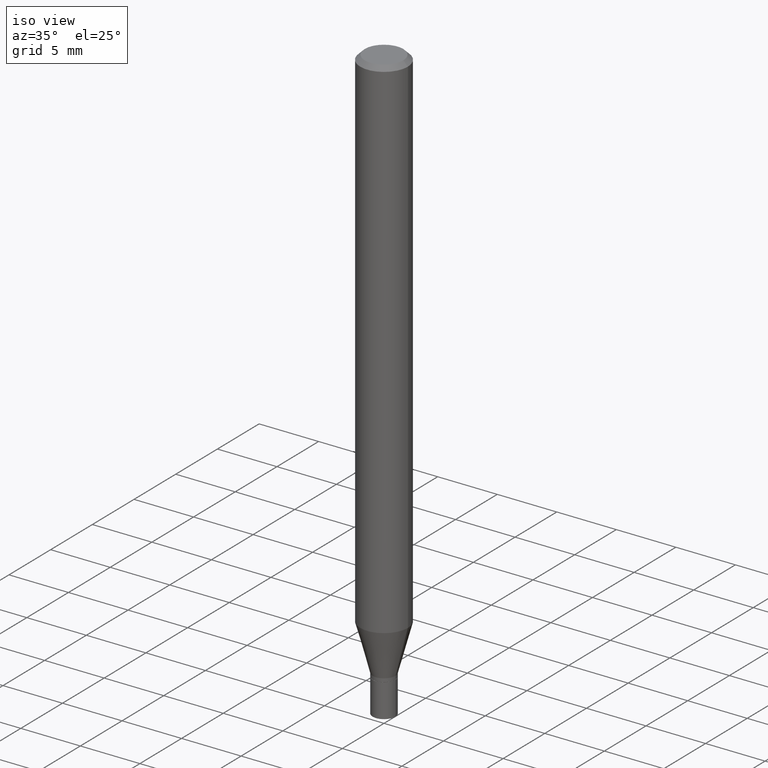
[diagram: clean part render]
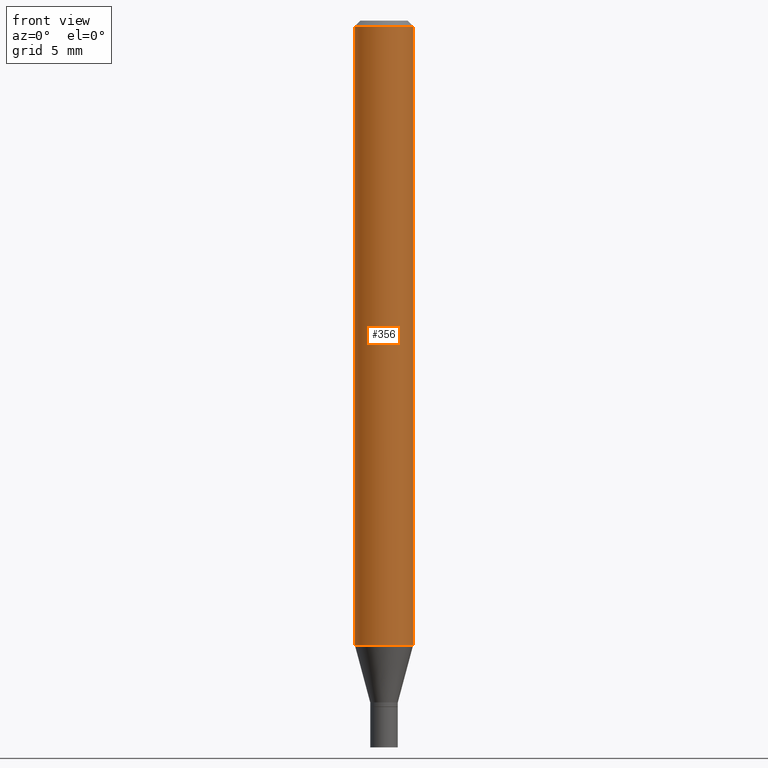
[diagram: tour spotlight — one face highlighted and labeled with its STEP entity id]
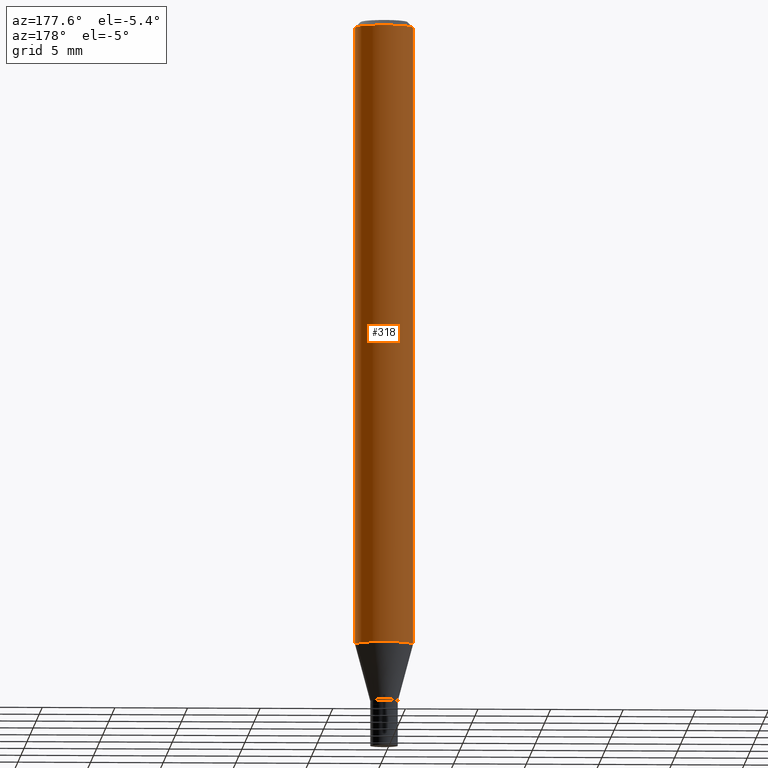
[diagram: tour spotlight — one face highlighted and labeled with its STEP entity id]
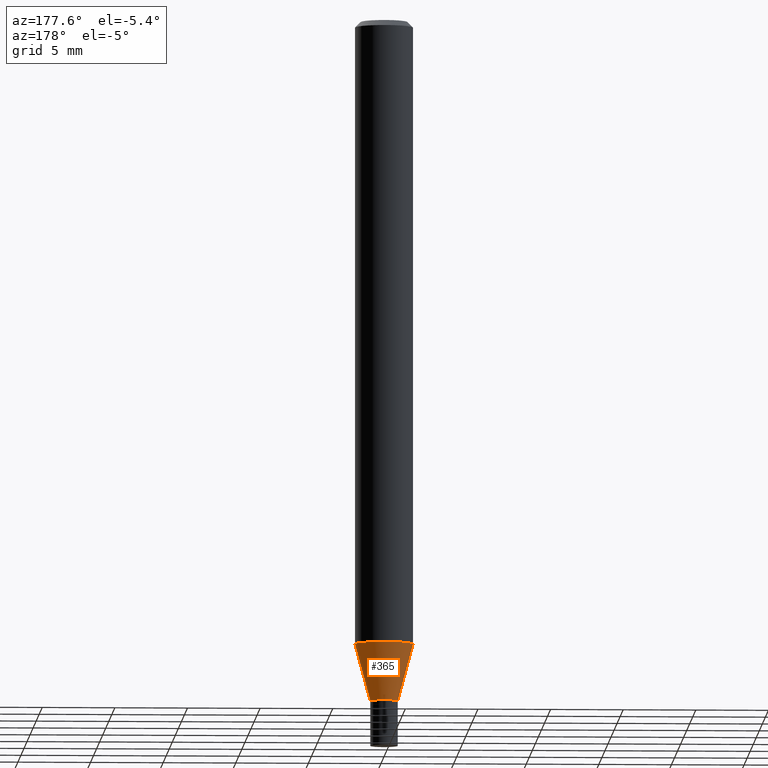
[diagram: tour spotlight — one face highlighted and labeled with its STEP entity id]
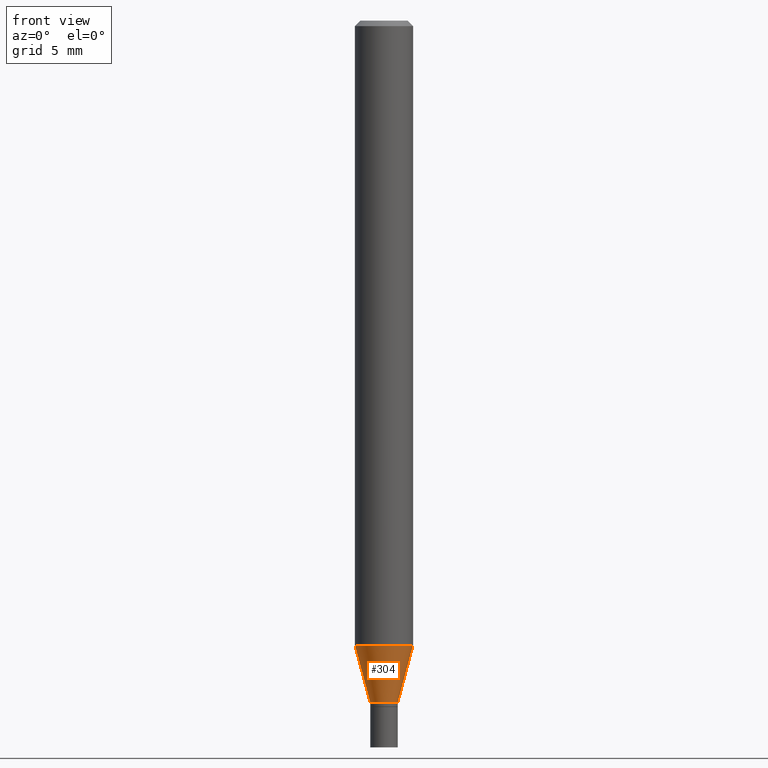
[diagram: tour spotlight — one face highlighted and labeled with its STEP entity id]
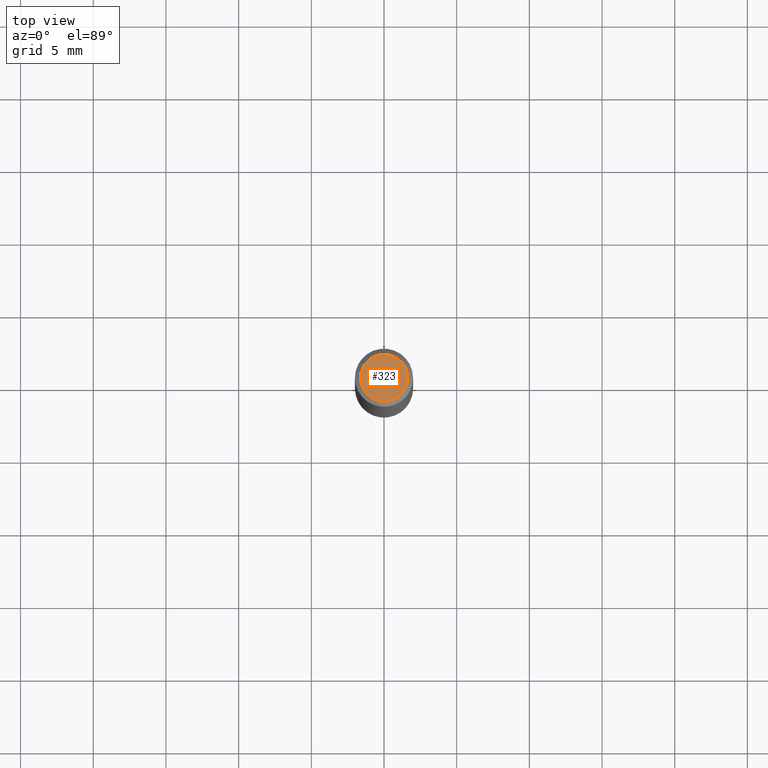
[diagram: tour spotlight — one face highlighted and labeled with its STEP entity id]
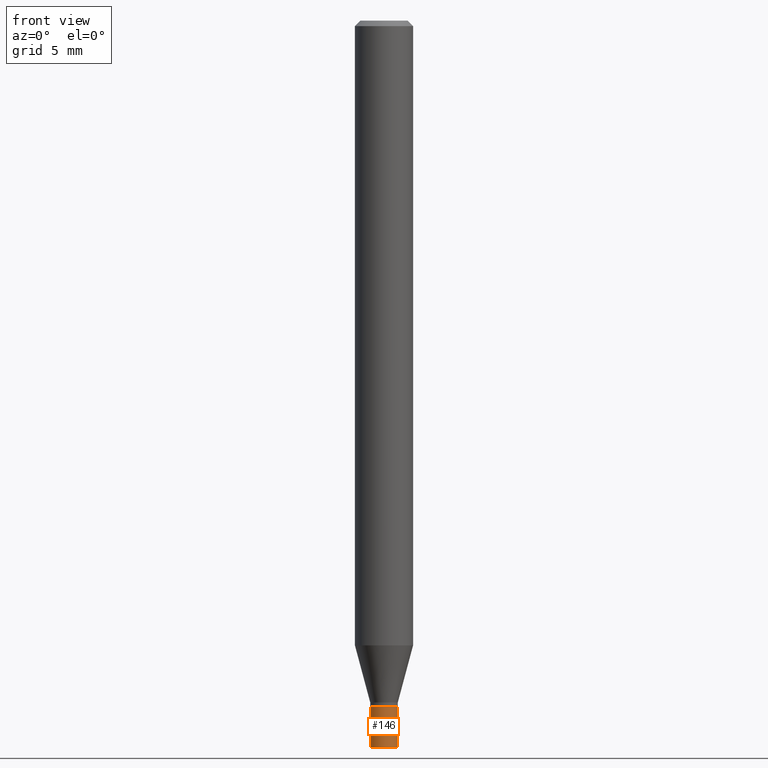
[diagram: tour spotlight — one face highlighted and labeled with its STEP entity id]
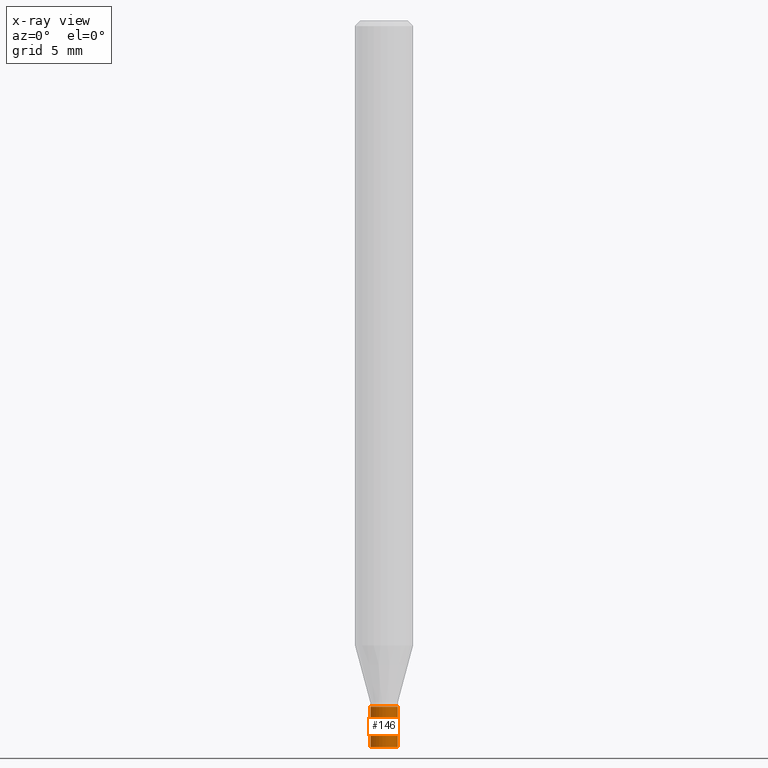
[diagram: x-ray of the same camera — body ghosted, this tour face saturated]
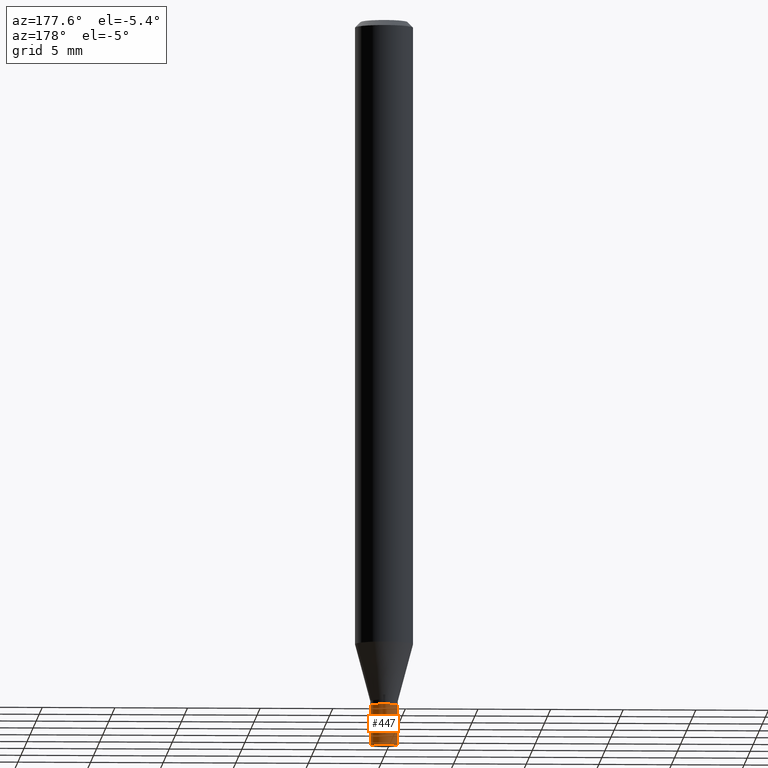
[diagram: tour spotlight — one face highlighted and labeled with its STEP entity id]
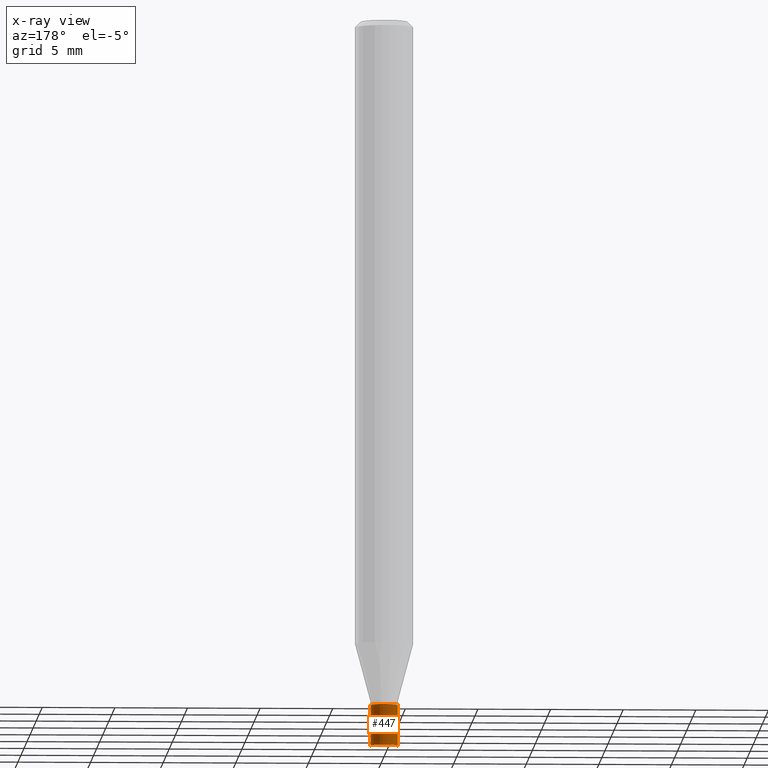
[diagram: x-ray of the same camera — body ghosted, this tour face saturated]
A machine part: a face-by-face anatomy tour. The part has 16 B-rep faces; the first image is the clean iso view, then the 7 largest visible faces are spotlighted one at a time (largest first), each with its STEP entity span.

Face 1 — front view, entity #356. In plain terms, the highlighted cylindrical surface (edge-blend (fillet) strip) has radius 2.0002 mm, axis along (-0, 0, 1).
Definition (entity closure, byte-faithful):
#1 = ORIENTED_EDGE ( 'NONE', *, *, #22, .F. ) ;
#19 = LINE ( 'NONE', #273, #438 ) ;
#22 = EDGE_CURVE ( 'NONE', #91, #448, #425, .T. ) ;
#23 = FACE_OUTER_BOUND ( 'NONE', #303, .T. ) ;
#35 = AXIS2_PLACEMENT_3D ( 'NONE', #161, #232, #387 ) ;
#46 = EDGE_CURVE ( 'NONE', #388, #448, #249, .T. ) ;
#58 = DIRECTION ( 'NONE',  ( -2.445468806185136597E-29, 3.491481338843145583E-15, 1.000000000000000000 ) ) ;
#76 = VERTEX_POINT ( 'NONE', #316 ) ;
#91 = VERTEX_POINT ( 'NONE', #460 ) ;
#98 = CARTESIAN_POINT ( 'NONE',  ( 0.07875000000000000056, -5.499083108677934443E-16, 3.839989210939299016E-30 ) ) ;
#101 = DIRECTION ( 'NONE',  ( 1.000000000000000000, -6.982962677686265922E-15, 0.000000000000000000 ) ) ;
#107 = EDGE_CURVE ( 'NONE', #76, #91, #19, .T. ) ;
#112 = EDGE_CURVE ( 'NONE', #76, #388, #117, .T. ) ;
#117 = CIRCLE ( 'NONE', #379, 0.07875000000000000056 ) ;
#135 = CARTESIAN_POINT ( 'NONE',  ( 3.668203209277705088E-31, -5.237222008264718399E-17, -0.01499999999999999944 ) ) ;
#139 = DIRECTION ( 'NONE',  ( -2.445468806185136597E-29, 3.491481338843145583E-15, 1.000000000000000000 ) ) ;
#161 = CARTESIAN_POINT ( 'NONE',  ( 0.000000000000000000, 0.000000000000000000, 0.000000000000000000 ) ) ;
#168 = CARTESIAN_POINT ( 'NONE',  ( 0.07875000000000000056, -6.458122152269187303E-15, -1.692179699107027258 ) ) ;
#177 = CARTESIAN_POINT ( 'NONE',  ( 4.138172668625985429E-29, -5.908213841401393958E-15, -1.692179699107027258 ) ) ;
#195 = VECTOR ( 'NONE', #283, 39.37007874015748143 ) ;
#203 = CARTESIAN_POINT ( 'NONE',  ( 0.07875000000000000056, -6.022805309504406221E-16, -0.01499999999999999944 ) ) ;
#232 = DIRECTION ( 'NONE',  ( -2.445468806185136597E-29, 3.491481338843145583E-15, 1.000000000000000000 ) ) ;
#241 = DIRECTION ( 'NONE',  ( -2.445468806185136877E-29, 3.491481338843145188E-15, 1.000000000000000000 ) ) ;
#249 = LINE ( 'NONE', #98, #195 ) ;
#267 = CYLINDRICAL_SURFACE ( 'NONE', #35, 0.07875000000000000056 ) ;
#271 = ORIENTED_EDGE ( 'NONE', *, *, #46, .T. ) ;
#273 = CARTESIAN_POINT ( 'NONE',  ( -0.07875000000000000056, 5.595524044110789003E-16, -3.873661383575737792E-30 ) ) ;
#283 = DIRECTION ( 'NONE',  ( -2.445468806185136877E-29, 3.491481338843145188E-15, 1.000000000000000000 ) ) ;
#303 = EDGE_LOOP ( 'NONE', ( #415, #385, #271, #1 ) ) ;
#316 = CARTESIAN_POINT ( 'NONE',  ( -0.07875000000000000056, -5.348661436990315945E-15, -1.692179699107027258 ) ) ;
#356 = ADVANCED_FACE ( 'NONE', ( #23 ), #267, .T. ) ;
#379 = AXIS2_PLACEMENT_3D ( 'NONE', #177, #58, #456 ) ;
#385 = ORIENTED_EDGE ( 'NONE', *, *, #112, .T. ) ;
#387 = DIRECTION ( 'NONE',  ( 1.000000000000000000, -6.982962677686265922E-15, 4.876176775795935232E-29 ) ) ;
#388 = VERTEX_POINT ( 'NONE', #168 ) ;
#415 = ORIENTED_EDGE ( 'NONE', *, *, #107, .F. ) ;
#423 = AXIS2_PLACEMENT_3D ( 'NONE', #135, #139, #101 ) ;
#425 = CIRCLE ( 'NONE', #423, 0.07875000000000000056 ) ;
#438 = VECTOR ( 'NONE', #241, 39.37007874015748143 ) ;
#448 = VERTEX_POINT ( 'NONE', #203 ) ;
#456 = DIRECTION ( 'NONE',  ( 1.000000000000000000, -6.982962677686261977E-15, 0.000000000000000000 ) ) ;
#460 = CARTESIAN_POINT ( 'NONE',  ( -0.07875000000000000056, -2.420740626330942308E-15, -0.01499999999999999944 ) ) ;

Face 2 — auxiliary view, entity #318. In plain terms, the highlighted cylindrical surface (edge-blend (fillet) strip) has radius 2.0002 mm, axis along (-0, 0, 1).
Definition (entity closure, byte-faithful):
#10 = EDGE_LOOP ( 'NONE', ( #145, #400, #256, #408 ) ) ;
#15 = CARTESIAN_POINT ( 'NONE',  ( 3.668203209277705088E-31, -5.237222008264718399E-17, -0.01499999999999999944 ) ) ;
#19 = LINE ( 'NONE', #273, #438 ) ;
#29 = AXIS2_PLACEMENT_3D ( 'NONE', #209, #392, #212 ) ;
#46 = EDGE_CURVE ( 'NONE', #388, #448, #249, .T. ) ;
#57 = CIRCLE ( 'NONE', #240, 0.07875000000000000056 ) ;
#75 = DIRECTION ( 'NONE',  ( 1.000000000000000000, -6.982962677686265922E-15, 4.876176775795935232E-29 ) ) ;
#76 = VERTEX_POINT ( 'NONE', #316 ) ;
#83 = DIRECTION ( 'NONE',  ( -2.445468806185136597E-29, 3.491481338843145583E-15, 1.000000000000000000 ) ) ;
#84 = CIRCLE ( 'NONE', #29, 0.07875000000000000056 ) ;
#91 = VERTEX_POINT ( 'NONE', #460 ) ;
#98 = CARTESIAN_POINT ( 'NONE',  ( 0.07875000000000000056, -5.499083108677934443E-16, 3.839989210939299016E-30 ) ) ;
#107 = EDGE_CURVE ( 'NONE', #76, #91, #19, .T. ) ;
#109 = CARTESIAN_POINT ( 'NONE',  ( 0.000000000000000000, 0.000000000000000000, 0.000000000000000000 ) ) ;
#114 = EDGE_CURVE ( 'NONE', #388, #76, #84, .T. ) ;
#144 = FACE_OUTER_BOUND ( 'NONE', #10, .T. ) ;
#145 = ORIENTED_EDGE ( 'NONE', *, *, #114, .T. ) ;
#168 = CARTESIAN_POINT ( 'NONE',  ( 0.07875000000000000056, -6.458122152269187303E-15, -1.692179699107027258 ) ) ;
#195 = VECTOR ( 'NONE', #283, 39.37007874015748143 ) ;
#203 = CARTESIAN_POINT ( 'NONE',  ( 0.07875000000000000056, -6.022805309504406221E-16, -0.01499999999999999944 ) ) ;
#209 = CARTESIAN_POINT ( 'NONE',  ( 4.138172668625985429E-29, -5.908213841401393958E-15, -1.692179699107027258 ) ) ;
#212 = DIRECTION ( 'NONE',  ( 1.000000000000000000, -6.982962677686261977E-15, 0.000000000000000000 ) ) ;
#236 = DIRECTION ( 'NONE',  ( 1.000000000000000000, -6.982962677686265922E-15, 0.000000000000000000 ) ) ;
#240 = AXIS2_PLACEMENT_3D ( 'NONE', #15, #83, #236 ) ;
#241 = DIRECTION ( 'NONE',  ( -2.445468806185136877E-29, 3.491481338843145188E-15, 1.000000000000000000 ) ) ;
#249 = LINE ( 'NONE', #98, #195 ) ;
#253 = DIRECTION ( 'NONE',  ( -2.445468806185136597E-29, 3.491481338843145583E-15, 1.000000000000000000 ) ) ;
#256 = ORIENTED_EDGE ( 'NONE', *, *, #331, .F. ) ;
#273 = CARTESIAN_POINT ( 'NONE',  ( -0.07875000000000000056, 5.595524044110789003E-16, -3.873661383575737792E-30 ) ) ;
#283 = DIRECTION ( 'NONE',  ( -2.445468806185136877E-29, 3.491481338843145188E-15, 1.000000000000000000 ) ) ;
#316 = CARTESIAN_POINT ( 'NONE',  ( -0.07875000000000000056, -5.348661436990315945E-15, -1.692179699107027258 ) ) ;
#318 = ADVANCED_FACE ( 'NONE', ( #144 ), #435, .T. ) ;
#331 = EDGE_CURVE ( 'NONE', #448, #91, #57, .T. ) ;
#388 = VERTEX_POINT ( 'NONE', #168 ) ;
#392 = DIRECTION ( 'NONE',  ( -2.445468806185136597E-29, 3.491481338843145583E-15, 1.000000000000000000 ) ) ;
#400 = ORIENTED_EDGE ( 'NONE', *, *, #107, .T. ) ;
#406 = AXIS2_PLACEMENT_3D ( 'NONE', #109, #253, #75 ) ;
#408 = ORIENTED_EDGE ( 'NONE', *, *, #46, .F. ) ;
#435 = CYLINDRICAL_SURFACE ( 'NONE', #406, 0.07875000000000000056 ) ;
#438 = VECTOR ( 'NONE', #241, 39.37007874015748143 ) ;
#448 = VERTEX_POINT ( 'NONE', #203 ) ;
#460 = CARTESIAN_POINT ( 'NONE',  ( -0.07875000000000000056, -2.420740626330942308E-15, -0.01499999999999999944 ) ) ;

Face 3 — auxiliary view, entity #365. In plain terms, the highlighted conical surface has half-angle 15 deg.
Definition (entity closure, byte-faithful):
#24 = EDGE_LOOP ( 'NONE', ( #383, #430, #374, #193 ) ) ;
#25 = DIRECTION ( 'NONE',  ( -2.445468806185136597E-29, 3.491481338843145583E-15, 1.000000000000000000 ) ) ;
#29 = AXIS2_PLACEMENT_3D ( 'NONE', #209, #392, #212 ) ;
#41 = LINE ( 'NONE', #441, #208 ) ;
#64 = CARTESIAN_POINT ( 'NONE',  ( 4.515558150620855448E-29, -6.447020292173869059E-15, -1.846500000000000030 ) ) ;
#71 = AXIS2_PLACEMENT_3D ( 'NONE', #343, #25, #315 ) ;
#74 = CONICAL_SURFACE ( 'NONE', #71, 0.03739999999999991942, 0.2617993877991501295 ) ;
#76 = VERTEX_POINT ( 'NONE', #316 ) ;
#79 = EDGE_CURVE ( 'NONE', #444, #229, #206, .T. ) ;
#84 = CIRCLE ( 'NONE', #29, 0.07875000000000000056 ) ;
#114 = EDGE_CURVE ( 'NONE', #388, #76, #84, .T. ) ;
#150 = EDGE_CURVE ( 'NONE', #229, #76, #300, .T. ) ;
#152 = CARTESIAN_POINT ( 'NONE',  ( -0.03739999999999991942, -6.181277308999592458E-15, -1.846500000000000030 ) ) ;
#168 = CARTESIAN_POINT ( 'NONE',  ( 0.07875000000000000056, -6.458122152269187303E-15, -1.692179699107027258 ) ) ;
#193 = ORIENTED_EDGE ( 'NONE', *, *, #225, .F. ) ;
#206 = CIRCLE ( 'NONE', #325, 0.03739999999999991942 ) ;
#208 = VECTOR ( 'NONE', #329, 39.37007874015747433 ) ;
#209 = CARTESIAN_POINT ( 'NONE',  ( 4.138172668625985429E-29, -5.908213841401393958E-15, -1.692179699107027258 ) ) ;
#212 = DIRECTION ( 'NONE',  ( 1.000000000000000000, -6.982962677686261977E-15, 0.000000000000000000 ) ) ;
#225 = EDGE_CURVE ( 'NONE', #444, #388, #41, .T. ) ;
#229 = VERTEX_POINT ( 'NONE', #288 ) ;
#238 = DIRECTION ( 'NONE',  ( -2.445468806185136597E-29, 3.491481338843145583E-15, 1.000000000000000000 ) ) ;
#255 = VECTOR ( 'NONE', #434, 39.37007874015747433 ) ;
#288 = CARTESIAN_POINT ( 'NONE',  ( -0.03739999999999991942, -5.764969372994953413E-15, -1.846500000000000030 ) ) ;
#300 = LINE ( 'NONE', #152, #255 ) ;
#309 = CARTESIAN_POINT ( 'NONE',  ( 0.03739999999999991942, -6.708183096319334671E-15, -1.846500000000000030 ) ) ;
#315 = DIRECTION ( 'NONE',  ( 1.000000000000000000, -6.982962677686265133E-15, 0.000000000000000000 ) ) ;
#316 = CARTESIAN_POINT ( 'NONE',  ( -0.07875000000000000056, -5.348661436990315945E-15, -1.692179699107027258 ) ) ;
#325 = AXIS2_PLACEMENT_3D ( 'NONE', #64, #238, #357 ) ;
#329 = DIRECTION ( 'NONE',  ( 0.2588190451025214611, 1.565188264969621573E-15, 0.9659258262890682012 ) ) ;
#341 = FACE_OUTER_BOUND ( 'NONE', #24, .T. ) ;
#343 = CARTESIAN_POINT ( 'NONE',  ( 4.515558150620855448E-29, -6.447020292173869059E-15, -1.846500000000000030 ) ) ;
#357 = DIRECTION ( 'NONE',  ( 1.000000000000000000, -6.982962677686265133E-15, 0.000000000000000000 ) ) ;
#365 = ADVANCED_FACE ( 'NONE', ( #341 ), #74, .T. ) ;
#374 = ORIENTED_EDGE ( 'NONE', *, *, #114, .F. ) ;
#383 = ORIENTED_EDGE ( 'NONE', *, *, #79, .T. ) ;
#388 = VERTEX_POINT ( 'NONE', #168 ) ;
#392 = DIRECTION ( 'NONE',  ( -2.445468806185136597E-29, 3.491481338843145583E-15, 1.000000000000000000 ) ) ;
#430 = ORIENTED_EDGE ( 'NONE', *, *, #150, .T. ) ;
#434 = DIRECTION ( 'NONE',  ( -0.2588190451025214611, 5.211531920934551042E-15, 0.9659258262890682012 ) ) ;
#441 = CARTESIAN_POINT ( 'NONE',  ( 0.03739999999999991942, -6.708183096319334671E-15, -1.846500000000000030 ) ) ;
#444 = VERTEX_POINT ( 'NONE', #309 ) ;

Face 4 — front view, entity #304. In plain terms, the highlighted conical surface has half-angle 15 deg.
Definition (entity closure, byte-faithful):
#4 = DIRECTION ( 'NONE',  ( -2.445468806185136597E-29, 3.491481338843145583E-15, 1.000000000000000000 ) ) ;
#40 = CONICAL_SURFACE ( 'NONE', #182, 0.03739999999999991942, 0.2617993877991501295 ) ;
#41 = LINE ( 'NONE', #441, #208 ) ;
#44 = EDGE_LOOP ( 'NONE', ( #147, #153, #202, #149 ) ) ;
#58 = DIRECTION ( 'NONE',  ( -2.445468806185136597E-29, 3.491481338843145583E-15, 1.000000000000000000 ) ) ;
#76 = VERTEX_POINT ( 'NONE', #316 ) ;
#112 = EDGE_CURVE ( 'NONE', #76, #388, #117, .T. ) ;
#117 = CIRCLE ( 'NONE', #379, 0.07875000000000000056 ) ;
#147 = ORIENTED_EDGE ( 'NONE', *, *, #150, .F. ) ;
#149 = ORIENTED_EDGE ( 'NONE', *, *, #112, .F. ) ;
#150 = EDGE_CURVE ( 'NONE', #229, #76, #300, .T. ) ;
#152 = CARTESIAN_POINT ( 'NONE',  ( -0.03739999999999991942, -6.181277308999592458E-15, -1.846500000000000030 ) ) ;
#153 = ORIENTED_EDGE ( 'NONE', *, *, #328, .T. ) ;
#158 = CARTESIAN_POINT ( 'NONE',  ( 4.515558150620855448E-29, -6.447020292173869059E-15, -1.846500000000000030 ) ) ;
#168 = CARTESIAN_POINT ( 'NONE',  ( 0.07875000000000000056, -6.458122152269187303E-15, -1.692179699107027258 ) ) ;
#177 = CARTESIAN_POINT ( 'NONE',  ( 4.138172668625985429E-29, -5.908213841401393958E-15, -1.692179699107027258 ) ) ;
#182 = AXIS2_PLACEMENT_3D ( 'NONE', #399, #4, #252 ) ;
#197 = DIRECTION ( 'NONE',  ( -2.445468806185136597E-29, 3.491481338843145583E-15, 1.000000000000000000 ) ) ;
#202 = ORIENTED_EDGE ( 'NONE', *, *, #225, .T. ) ;
#208 = VECTOR ( 'NONE', #329, 39.37007874015747433 ) ;
#221 = AXIS2_PLACEMENT_3D ( 'NONE', #158, #197, #353 ) ;
#225 = EDGE_CURVE ( 'NONE', #444, #388, #41, .T. ) ;
#229 = VERTEX_POINT ( 'NONE', #288 ) ;
#252 = DIRECTION ( 'NONE',  ( 1.000000000000000000, -6.982962677686265133E-15, 0.000000000000000000 ) ) ;
#255 = VECTOR ( 'NONE', #434, 39.37007874015747433 ) ;
#288 = CARTESIAN_POINT ( 'NONE',  ( -0.03739999999999991942, -5.764969372994953413E-15, -1.846500000000000030 ) ) ;
#300 = LINE ( 'NONE', #152, #255 ) ;
#304 = ADVANCED_FACE ( 'NONE', ( #404 ), #40, .T. ) ;
#309 = CARTESIAN_POINT ( 'NONE',  ( 0.03739999999999991942, -6.708183096319334671E-15, -1.846500000000000030 ) ) ;
#316 = CARTESIAN_POINT ( 'NONE',  ( -0.07875000000000000056, -5.348661436990315945E-15, -1.692179699107027258 ) ) ;
#328 = EDGE_CURVE ( 'NONE', #229, #444, #396, .T. ) ;
#329 = DIRECTION ( 'NONE',  ( 0.2588190451025214611, 1.565188264969621573E-15, 0.9659258262890682012 ) ) ;
#353 = DIRECTION ( 'NONE',  ( 1.000000000000000000, -6.982962677686265133E-15, 0.000000000000000000 ) ) ;
#379 = AXIS2_PLACEMENT_3D ( 'NONE', #177, #58, #456 ) ;
#388 = VERTEX_POINT ( 'NONE', #168 ) ;
#396 = CIRCLE ( 'NONE', #221, 0.03739999999999991942 ) ;
#399 = CARTESIAN_POINT ( 'NONE',  ( 4.515558150620855448E-29, -6.447020292173869059E-15, -1.846500000000000030 ) ) ;
#404 = FACE_OUTER_BOUND ( 'NONE', #44, .T. ) ;
#434 = DIRECTION ( 'NONE',  ( -0.2588190451025214611, 5.211531920934551042E-15, 0.9659258262890682012 ) ) ;
#441 = CARTESIAN_POINT ( 'NONE',  ( 0.03739999999999991942, -6.708183096319334671E-15, -1.846500000000000030 ) ) ;
#444 = VERTEX_POINT ( 'NONE', #309 ) ;
#456 = DIRECTION ( 'NONE',  ( 1.000000000000000000, -6.982962677686261977E-15, 0.000000000000000000 ) ) ;

Face 5 — top view, entity #323. In plain terms, the highlighted planar face has unit normal (0, -0, -1).
Definition (entity closure, byte-faithful):
#9 = CARTESIAN_POINT ( 'NONE',  ( -0.06375000000000000111, 4.713499807438222338E-16, -3.508777599725288588E-16 ) ) ;
#55 = DIRECTION ( 'NONE',  ( 2.438088387897960049E-29, -3.491481338843145188E-15, -1.000000000000000000 ) ) ;
#60 = DIRECTION ( 'NONE',  ( 1.000000000000000000, -6.982962677686265922E-15, 4.852736867747365646E-29 ) ) ;
#95 = AXIS2_PLACEMENT_3D ( 'NONE', #133, #175, #172 ) ;
#113 = CIRCLE ( 'NONE', #95, 0.06375000000000000111 ) ;
#126 = DIRECTION ( 'NONE',  ( -1.000000000000000000, 6.982962677686265922E-15, -4.876176775795935793E-29 ) ) ;
#133 = CARTESIAN_POINT ( 'NONE',  ( 8.580606167969272650E-45, -1.225083151159157695E-30, -3.508777599725256540E-16 ) ) ;
#140 = EDGE_CURVE ( 'NONE', #183, #342, #113, .T. ) ;
#162 = ORIENTED_EDGE ( 'NONE', *, *, #140, .T. ) ;
#172 = DIRECTION ( 'NONE',  ( 1.000000000000000000, -6.982962677686265922E-15, 4.852736867747365646E-29 ) ) ;
#175 = DIRECTION ( 'NONE',  ( -2.445468806185136597E-29, 3.491481338843145583E-15, 1.000000000000000000 ) ) ;
#183 = VERTEX_POINT ( 'NONE', #9 ) ;
#214 = AXIS2_PLACEMENT_3D ( 'NONE', #378, #417, #60 ) ;
#224 = FACE_OUTER_BOUND ( 'NONE', #380, .T. ) ;
#265 = ORIENTED_EDGE ( 'NONE', *, *, #436, .T. ) ;
#274 = CARTESIAN_POINT ( 'NONE',  ( 0.06375000000000000111, -5.149965923825457196E-16, -3.508777599725223014E-16 ) ) ;
#323 = ADVANCED_FACE ( 'NONE', ( #224 ), #336, .F. ) ;
#336 = PLANE ( 'NONE',  #339 ) ;
#339 = AXIS2_PLACEMENT_3D ( 'NONE', #373, #55, #126 ) ;
#342 = VERTEX_POINT ( 'NONE', #274 ) ;
#358 = CIRCLE ( 'NONE', #214, 0.06375000000000000111 ) ;
#373 = CARTESIAN_POINT ( 'NONE',  ( 4.451638707024993845E-16, 0.06375000000000000111, -3.980208153375133574E-16 ) ) ;
#378 = CARTESIAN_POINT ( 'NONE',  ( 8.580606167969272650E-45, -1.225083151159157695E-30, -3.508777599725256540E-16 ) ) ;
#380 = EDGE_LOOP ( 'NONE', ( #162, #265 ) ) ;
#417 = DIRECTION ( 'NONE',  ( -2.445468806185136597E-29, 3.491481338843145583E-15, 1.000000000000000000 ) ) ;
#436 = EDGE_CURVE ( 'NONE', #342, #183, #358, .T. ) ;

Face 6 — front view, entity #146. An x-ray twin of the same camera follows (body ghosted, this face saturated) — the face is partly hidden behind the body. In plain terms, the highlighted cylindrical surface (edge-blend (fillet) strip) has radius 0.95 mm, axis along (-0, 0, 1).
Definition (entity closure, byte-faithful):
#11 = DIRECTION ( 'NONE',  ( -2.445468806185136877E-29, 3.491481338843145188E-15, 1.000000000000000000 ) ) ;
#14 = EDGE_LOOP ( 'NONE', ( #235, #451, #188, #127 ) ) ;
#18 = VECTOR ( 'NONE', #11, 39.37007874015748143 ) ;
#33 = CARTESIAN_POINT ( 'NONE',  ( -0.03740000000000000269, -6.414857410568197524E-15, -1.858300000000000063 ) ) ;
#36 = EDGE_CURVE ( 'NONE', #166, #345, #337, .T. ) ;
#53 = CARTESIAN_POINT ( 'NONE',  ( -0.03740000000000000269, -6.414857410568197524E-15, -1.968500000000000139 ) ) ;
#66 = DIRECTION ( 'NONE',  ( 1.000000000000000000, -6.982962677686266711E-15, 4.876176775795935793E-29 ) ) ;
#77 = CARTESIAN_POINT ( 'NONE',  ( 0.03740000000000000269, -2.611628041454664002E-16, 1.823690114147680082E-30 ) ) ;
#87 = VERTEX_POINT ( 'NONE', #53 ) ;
#106 = LINE ( 'NONE', #261, #381 ) ;
#127 = ORIENTED_EDGE ( 'NONE', *, *, #36, .F. ) ;
#137 = CARTESIAN_POINT ( 'NONE',  ( 0.000000000000000000, 0.000000000000000000, 0.000000000000000000 ) ) ;
#146 = ADVANCED_FACE ( 'NONE', ( #319 ), #243, .T. ) ;
#163 = CARTESIAN_POINT ( 'NONE',  ( 0.03740000000000000269, -6.749382576117683733E-15, -1.858300000000000063 ) ) ;
#166 = VERTEX_POINT ( 'NONE', #33 ) ;
#169 = DIRECTION ( 'NONE',  ( 1.000000000000000000, -6.982962677686274599E-15, 0.000000000000000000 ) ) ;
#178 = EDGE_CURVE ( 'NONE', #413, #345, #185, .T. ) ;
#181 = DIRECTION ( 'NONE',  ( -2.445468806185136877E-29, 3.491481338843145188E-15, 1.000000000000000000 ) ) ;
#185 = LINE ( 'NONE', #77, #18 ) ;
#188 = ORIENTED_EDGE ( 'NONE', *, *, #178, .T. ) ;
#191 = EDGE_CURVE ( 'NONE', #87, #166, #106, .T. ) ;
#235 = ORIENTED_EDGE ( 'NONE', *, *, #191, .F. ) ;
#243 = CYLINDRICAL_SURFACE ( 'NONE', #439, 0.03740000000000000269 ) ;
#261 = CARTESIAN_POINT ( 'NONE',  ( -0.03740000000000000269, 2.657429831742774886E-16, -1.839681723755335040E-30 ) ) ;
#269 = AXIS2_PLACEMENT_3D ( 'NONE', #461, #347, #382 ) ;
#280 = CARTESIAN_POINT ( 'NONE',  ( 4.544414682533838949E-29, -6.488219771972217332E-15, -1.858300000000000063 ) ) ;
#319 = FACE_OUTER_BOUND ( 'NONE', #14, .T. ) ;
#321 = DIRECTION ( 'NONE',  ( -2.445468806185136597E-29, 3.491481338843145583E-15, 1.000000000000000000 ) ) ;
#337 = CIRCLE ( 'NONE', #403, 0.03740000000000000269 ) ;
#345 = VERTEX_POINT ( 'NONE', #163 ) ;
#347 = DIRECTION ( 'NONE',  ( -2.445468806185136597E-29, 3.491481338843145583E-15, 1.000000000000000000 ) ) ;
#348 = DIRECTION ( 'NONE',  ( -2.445468806185136597E-29, 3.491481338843145583E-15, 1.000000000000000000 ) ) ;
#381 = VECTOR ( 'NONE', #181, 39.37007874015748143 ) ;
#382 = DIRECTION ( 'NONE',  ( 1.000000000000000000, -6.982962677686274599E-15, 0.000000000000000000 ) ) ;
#403 = AXIS2_PLACEMENT_3D ( 'NONE', #280, #348, #169 ) ;
#413 = VERTEX_POINT ( 'NONE', #453 ) ;
#421 = EDGE_CURVE ( 'NONE', #87, #413, #464, .T. ) ;
#439 = AXIS2_PLACEMENT_3D ( 'NONE', #137, #321, #66 ) ;
#451 = ORIENTED_EDGE ( 'NONE', *, *, #421, .T. ) ;
#453 = CARTESIAN_POINT ( 'NONE',  ( 0.03740000000000000269, -7.134143819658198107E-15, -1.968500000000000139 ) ) ;
#461 = CARTESIAN_POINT ( 'NONE',  ( 4.813905344975441835E-29, -6.872981015512731707E-15, -1.968500000000000139 ) ) ;
#464 = CIRCLE ( 'NONE', #269, 0.03740000000000000269 ) ;

Face 7 — auxiliary view, entity #447. An x-ray twin of the same camera follows (body ghosted, this face saturated) — the face is partly hidden behind the body. In plain terms, the highlighted cylindrical surface (edge-blend (fillet) strip) has radius 0.95 mm, axis along (-0, 0, 1).
Definition (entity closure, byte-faithful):
#11 = DIRECTION ( 'NONE',  ( -2.445468806185136877E-29, 3.491481338843145188E-15, 1.000000000000000000 ) ) ;
#18 = VECTOR ( 'NONE', #11, 39.37007874015748143 ) ;
#33 = CARTESIAN_POINT ( 'NONE',  ( -0.03740000000000000269, -6.414857410568197524E-15, -1.858300000000000063 ) ) ;
#37 = DIRECTION ( 'NONE',  ( 1.000000000000000000, -6.982962677686274599E-15, 0.000000000000000000 ) ) ;
#51 = DIRECTION ( 'NONE',  ( -2.445468806185136597E-29, 3.491481338843145583E-15, 1.000000000000000000 ) ) ;
#53 = CARTESIAN_POINT ( 'NONE',  ( -0.03740000000000000269, -6.414857410568197524E-15, -1.968500000000000139 ) ) ;
#69 = DIRECTION ( 'NONE',  ( -2.445468806185136597E-29, 3.491481338843145583E-15, 1.000000000000000000 ) ) ;
#77 = CARTESIAN_POINT ( 'NONE',  ( 0.03740000000000000269, -2.611628041454664002E-16, 1.823690114147680082E-30 ) ) ;
#87 = VERTEX_POINT ( 'NONE', #53 ) ;
#89 = CYLINDRICAL_SURFACE ( 'NONE', #372, 0.03740000000000000269 ) ;
#94 = DIRECTION ( 'NONE',  ( 1.000000000000000000, -6.982962677686266711E-15, 4.876176775795935793E-29 ) ) ;
#106 = LINE ( 'NONE', #261, #381 ) ;
#110 = ORIENTED_EDGE ( 'NONE', *, *, #307, .F. ) ;
#134 = FACE_OUTER_BOUND ( 'NONE', #454, .T. ) ;
#141 = CARTESIAN_POINT ( 'NONE',  ( 4.813905344975441835E-29, -6.872981015512731707E-15, -1.968500000000000139 ) ) ;
#163 = CARTESIAN_POINT ( 'NONE',  ( 0.03740000000000000269, -6.749382576117683733E-15, -1.858300000000000063 ) ) ;
#166 = VERTEX_POINT ( 'NONE', #33 ) ;
#178 = EDGE_CURVE ( 'NONE', #413, #345, #185, .T. ) ;
#181 = DIRECTION ( 'NONE',  ( -2.445468806185136877E-29, 3.491481338843145188E-15, 1.000000000000000000 ) ) ;
#185 = LINE ( 'NONE', #77, #18 ) ;
#187 = CIRCLE ( 'NONE', #416, 0.03740000000000000269 ) ;
#191 = EDGE_CURVE ( 'NONE', #87, #166, #106, .T. ) ;
#192 = DIRECTION ( 'NONE',  ( -2.445468806185136597E-29, 3.491481338843145583E-15, 1.000000000000000000 ) ) ;
#230 = AXIS2_PLACEMENT_3D ( 'NONE', #141, #192, #250 ) ;
#234 = CARTESIAN_POINT ( 'NONE',  ( 0.000000000000000000, 0.000000000000000000, 0.000000000000000000 ) ) ;
#248 = CIRCLE ( 'NONE', #230, 0.03740000000000000269 ) ;
#250 = DIRECTION ( 'NONE',  ( 1.000000000000000000, -6.982962677686274599E-15, 0.000000000000000000 ) ) ;
#261 = CARTESIAN_POINT ( 'NONE',  ( -0.03740000000000000269, 2.657429831742774886E-16, -1.839681723755335040E-30 ) ) ;
#262 = ORIENTED_EDGE ( 'NONE', *, *, #178, .F. ) ;
#281 = EDGE_CURVE ( 'NONE', #413, #87, #248, .T. ) ;
#307 = EDGE_CURVE ( 'NONE', #345, #166, #187, .T. ) ;
#345 = VERTEX_POINT ( 'NONE', #163 ) ;
#372 = AXIS2_PLACEMENT_3D ( 'NONE', #234, #51, #94 ) ;
#376 = ORIENTED_EDGE ( 'NONE', *, *, #281, .T. ) ;
#381 = VECTOR ( 'NONE', #181, 39.37007874015748143 ) ;
#402 = CARTESIAN_POINT ( 'NONE',  ( 4.544414682533838949E-29, -6.488219771972217332E-15, -1.858300000000000063 ) ) ;
#413 = VERTEX_POINT ( 'NONE', #453 ) ;
#416 = AXIS2_PLACEMENT_3D ( 'NONE', #402, #69, #37 ) ;
#447 = ADVANCED_FACE ( 'NONE', ( #134 ), #89, .T. ) ;
#453 = CARTESIAN_POINT ( 'NONE',  ( 0.03740000000000000269, -7.134143819658198107E-15, -1.968500000000000139 ) ) ;
#454 = EDGE_LOOP ( 'NONE', ( #376, #462, #110, #262 ) ) ;
#462 = ORIENTED_EDGE ( 'NONE', *, *, #191, .T. ) ;